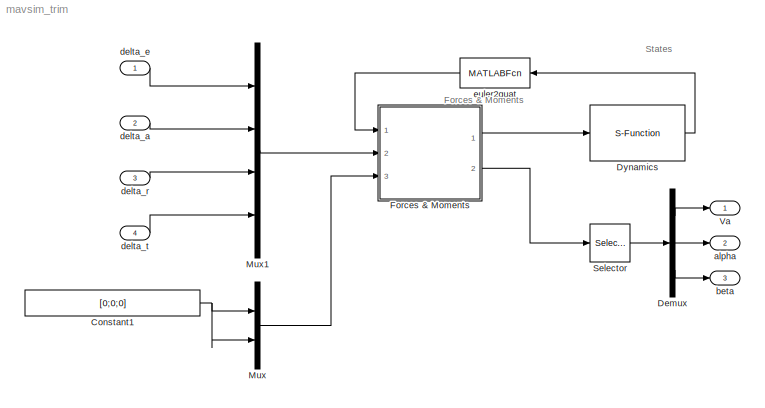
MODEL mavsim_trim
KIND model
BLOCK [Constant] Constant1
  SID = 81
  Value = [0;0;0]
BLOCK [Demux] Demux
  DisplayOption = bar
  Outputs = 3
  Ports = [1, 3]
  SID = 100
BLOCK [S-Function] Dynamics
  EnableBusSupport = off
  FunctionName = mav_dynamics_euler
  Parameters = P
  Ports = [1, 1]
  SFcnIsStateOwnerBlock = off
  SFunctionDeploymentMode = off
  SID = 80
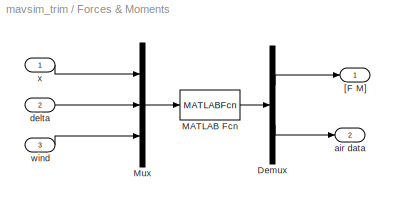
BLOCK [SubSystem] Forces & Moments
  Ports = [3, 2]
  RequestExecContextInheritance = off
  SID = 8
  Variant = off
BLOCK [Demux] Forces & Moments/Demux
  DisplayOption = bar
  Outputs = [6;6]
  Ports = [1, 2]
  SID = 12
BLOCK [MATLABFcn] Forces & Moments/MATLAB Fcn
  MATLABFcn = forces_moments(u(1:13),u(14:17),u(18:23),P)
  OutputDimensions = 12
  Ports = [1, 1]
  SID = 13
BLOCK [Mux] Forces & Moments/Mux
  DisplayOption = bar
  Inputs = 3
  Ports = [3, 1]
  SID = 14
BLOCK [Outport] Forces & Moments/[F M]
  IconDisplay = Port number
  SID = 15
BLOCK [Outport] Forces & Moments/air data
  IconDisplay = Port number
  Port = 2
  SID = 46
BLOCK [Inport] Forces & Moments/delta
  IconDisplay = Port number
  Port = 2
  SID = 10
BLOCK [Inport] Forces & Moments/wind
  IconDisplay = Port number
  Port = 3
  SID = 11
BLOCK [Inport] Forces & Moments/x
  IconDisplay = Port number
  SID = 9
BLOCK [Mux] Mux
  DisplayOption = bar
  Inputs = 2
  Ports = [2, 1]
  SID = 17
BLOCK [Mux] Mux1
  DisplayOption = bar
  Ports = [4, 1]
  SID = 18
BLOCK [Selector] Selector
  IndexOptions = Index vector (dialog)
  Indices = [1 2 3]
  InputPortWidth = 6
  OutputSizes = 1
  Ports = [1, 1]
  SID = 101
BLOCK [Outport] Va
  IconDisplay = Port number
  SID = 102
BLOCK [Outport] alpha
  IconDisplay = Port number
  Port = 2
  SID = 103
BLOCK [Outport] beta
  IconDisplay = Port number
  Port = 3
  SID = 104
BLOCK [Inport] delta_a
  IconDisplay = Port number
  Port = 2
  SID = 97
BLOCK [Inport] delta_e
  IconDisplay = Port number
  SID = 96
BLOCK [Inport] delta_r
  IconDisplay = Port number
  Port = 3
  SID = 98
BLOCK [Inport] delta_t
  IconDisplay = Port number
  Port = 4
  SID = 99
BLOCK [MATLABFcn] euler2quat
  MATLABFcn = euler2quat_state
  Ports = [1, 1]
  SID = 105
ANNOTATION (root): Forces & Moments
ANNOTATION (root): States
NET Constant1:1 -> Mux:1, Mux:2
LINE Demux:1 -> Va:1
LINE Demux:2 -> alpha:1
LINE Demux:3 -> beta:1
LINE Dynamics:1 -> euler2quat:1
LINE Forces & Moments/Demux:1 -> Forces & Moments/[F M]:1
LINE Forces & Moments/Demux:2 -> Forces & Moments/air data:1
LINE Forces & Moments/MATLAB Fcn:1 -> Forces & Moments/Demux:1
LINE Forces & Moments/Mux:1 -> Forces & Moments/MATLAB Fcn:1
LINE Forces & Moments/delta:1 -> Forces & Moments/Mux:2
LINE Forces & Moments/wind:1 -> Forces & Moments/Mux:3
LINE Forces & Moments/x:1 -> Forces & Moments/Mux:1
LINE Forces & Moments:1 -> Dynamics:1
LINE Forces & Moments:2 -> Selector:1
LINE Mux1:1 -> Forces & Moments:2
LINE Mux:1 -> Forces & Moments:3
LINE Selector:1 -> Demux:1
LINE delta_a:1 -> Mux1:2
LINE delta_e:1 -> Mux1:1
LINE delta_r:1 -> Mux1:3
LINE delta_t:1 -> Mux1:4
LINE euler2quat:1 -> Forces & Moments:1
note: NET lines group one-source signal fan-out (src -> all destinations, sorted); 1:1 wires keep LINE
